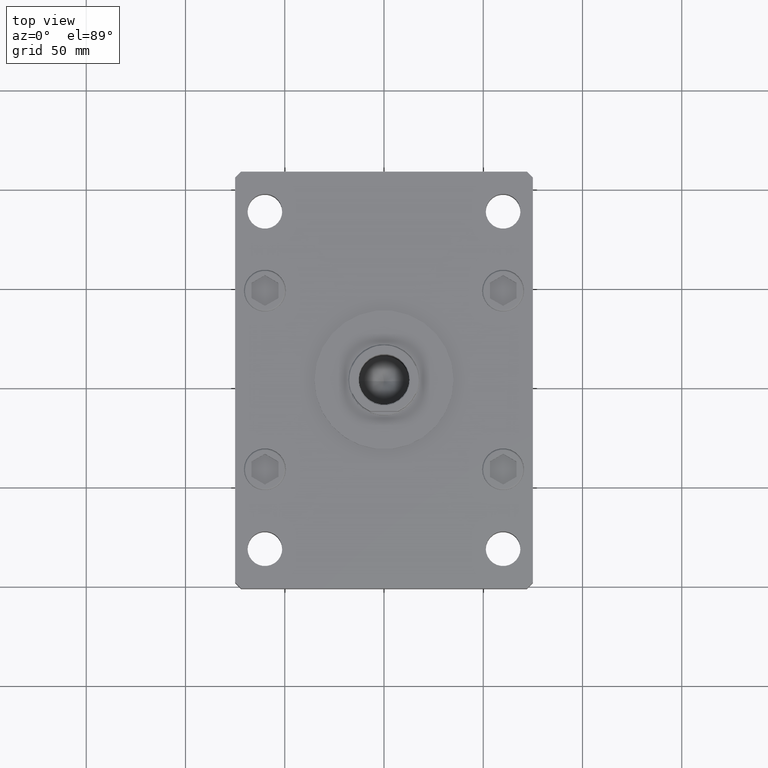
[diagram: clean part render]
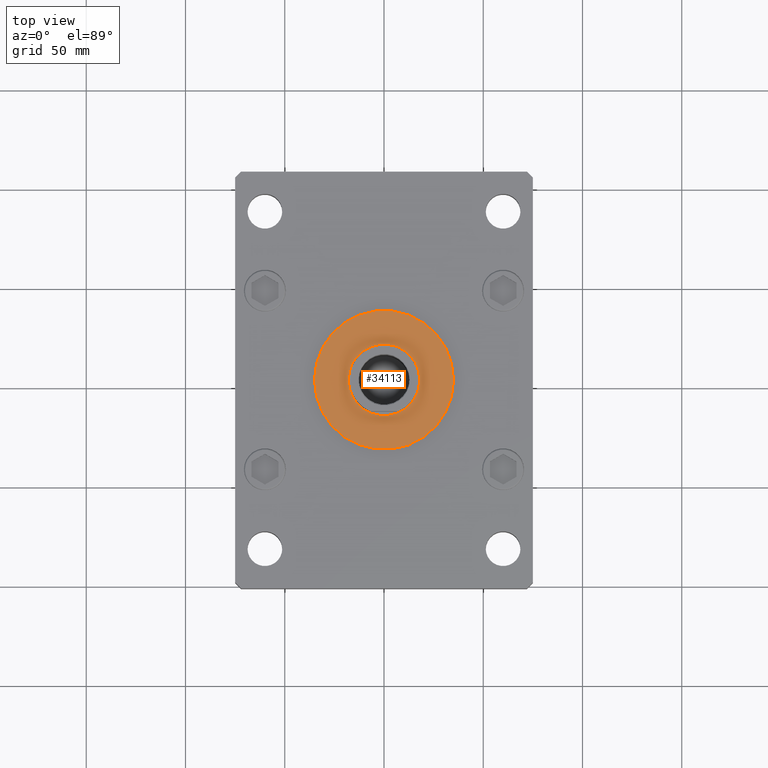
[diagram: same view with one face highlighted and labeled with its STEP entity id]
A machine part, top view. The second image highlights one B-rep face of the part: STEP entity #34113.
In plain terms, the highlighted planar face has unit normal (0, 0, 1).
Its self-contained STEP definition (entity closure, byte-faithful):
#2967 = CARTESIAN_POINT ( 'NONE',  ( 18.00000000000000000, 0.000000000000000000, 28.99999999999999645 ) ) ;
#3387 = DIRECTION ( 'NONE',  ( 1.000000000000000000, 0.000000000000000000, -0.000000000000000000 ) ) ;
#3753 = AXIS2_PLACEMENT_3D ( 'NONE', #42812, #4905, #30108 ) ;
#3893 = AXIS2_PLACEMENT_3D ( 'NONE', #24392, #45515, #24945 ) ;
#4905 = DIRECTION ( 'NONE',  ( 0.000000000000000000, 0.000000000000000000, 1.000000000000000000 ) ) ;
#6698 = DIRECTION ( 'NONE',  ( 0.000000000000000000, 0.000000000000000000, 1.000000000000000000 ) ) ;
#7580 = ORIENTED_EDGE ( 'NONE', *, *, #41119, .F. ) ;
#8184 = DIRECTION ( 'NONE',  ( 0.000000000000000000, 0.000000000000000000, 1.000000000000000000 ) ) ;
#11527 = ORIENTED_EDGE ( 'NONE', *, *, #22160, .T. ) ;
#14073 = VERTEX_POINT ( 'NONE', #28766 ) ;
#15334 = DIRECTION ( 'NONE',  ( 0.000000000000000000, 0.000000000000000000, 1.000000000000000000 ) ) ;
#15371 = CARTESIAN_POINT ( 'NONE',  ( 0.000000000000000000, 0.000000000000000000, 28.99999999999999645 ) ) ;
#15443 = EDGE_LOOP ( 'NONE', ( #7580, #34070 ) ) ;
#20931 = EDGE_CURVE ( 'NONE', #25766, #51337, #30713, .T. ) ;
#21095 = VERTEX_POINT ( 'NONE', #47712 ) ;
#22160 = EDGE_CURVE ( 'NONE', #14073, #21095, #50641, .T. ) ;
#24392 = CARTESIAN_POINT ( 'NONE',  ( 0.000000000000000000, 0.000000000000000000, 28.99999999999999645 ) ) ;
#24945 = DIRECTION ( 'NONE',  ( 1.000000000000000000, 0.000000000000000000, 0.000000000000000000 ) ) ;
#25766 = VERTEX_POINT ( 'NONE', #48171 ) ;
#28414 = AXIS2_PLACEMENT_3D ( 'NONE', #15371, #6698, #48424 ) ;
#28766 = CARTESIAN_POINT ( 'NONE',  ( 35.00000000000000711, 4.286263797015737285E-15, 28.99999999999999645 ) ) ;
#29856 = AXIS2_PLACEMENT_3D ( 'NONE', #53170, #8184, #40968 ) ;
#30108 = DIRECTION ( 'NONE',  ( 1.000000000000000000, 0.000000000000000000, 0.000000000000000000 ) ) ;
#30713 = CIRCLE ( 'NONE', #29856, 18.00000000000000000 ) ;
#31857 = CIRCLE ( 'NONE', #28414, 35.00000000000000711 ) ;
#32926 = FACE_OUTER_BOUND ( 'NONE', #40376, .T. ) ;
#34070 = ORIENTED_EDGE ( 'NONE', *, *, #20931, .F. ) ;
#34113 = ADVANCED_FACE ( 'NONE', ( #44301, #32926 ), #52714, .T. ) ;
#34607 = EDGE_CURVE ( 'NONE', #21095, #14073, #31857, .T. ) ;
#38746 = ORIENTED_EDGE ( 'NONE', *, *, #34607, .T. ) ;
#40376 = EDGE_LOOP ( 'NONE', ( #38746, #11527 ) ) ;
#40524 = CARTESIAN_POINT ( 'NONE',  ( 0.000000000000000000, 0.000000000000000000, 28.99999999999999645 ) ) ;
#40968 = DIRECTION ( 'NONE',  ( 1.000000000000000000, 0.000000000000000000, 0.000000000000000000 ) ) ;
#41119 = EDGE_CURVE ( 'NONE', #51337, #25766, #49639, .T. ) ;
#42812 = CARTESIAN_POINT ( 'NONE',  ( 0.000000000000000000, 0.000000000000000000, 28.99999999999999645 ) ) ;
#44301 = FACE_BOUND ( 'NONE', #15443, .T. ) ;
#45515 = DIRECTION ( 'NONE',  ( 0.000000000000000000, 0.000000000000000000, 1.000000000000000000 ) ) ;
#47712 = CARTESIAN_POINT ( 'NONE',  ( -35.00000000000000711, 0.000000000000000000, 28.99999999999999645 ) ) ;
#48171 = CARTESIAN_POINT ( 'NONE',  ( -18.00000000000000000, 2.204364238465235428E-15, 28.99999999999999645 ) ) ;
#48424 = DIRECTION ( 'NONE',  ( 1.000000000000000000, 0.000000000000000000, 0.000000000000000000 ) ) ;
#49639 = CIRCLE ( 'NONE', #3753, 18.00000000000000000 ) ;
#50641 = CIRCLE ( 'NONE', #3893, 35.00000000000000711 ) ;
#51337 = VERTEX_POINT ( 'NONE', #2967 ) ;
#51795 = AXIS2_PLACEMENT_3D ( 'NONE', #40524, #15334, #3387 ) ;
#52714 = PLANE ( 'NONE',  #51795 ) ;
#53170 = CARTESIAN_POINT ( 'NONE',  ( 0.000000000000000000, 0.000000000000000000, 28.99999999999999645 ) ) ;